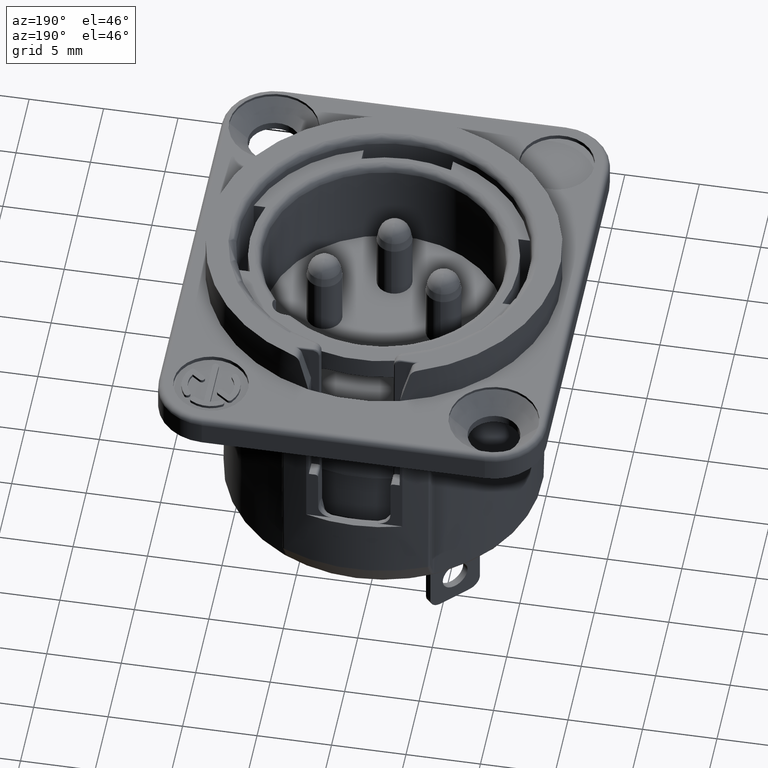
[diagram: clean part render]
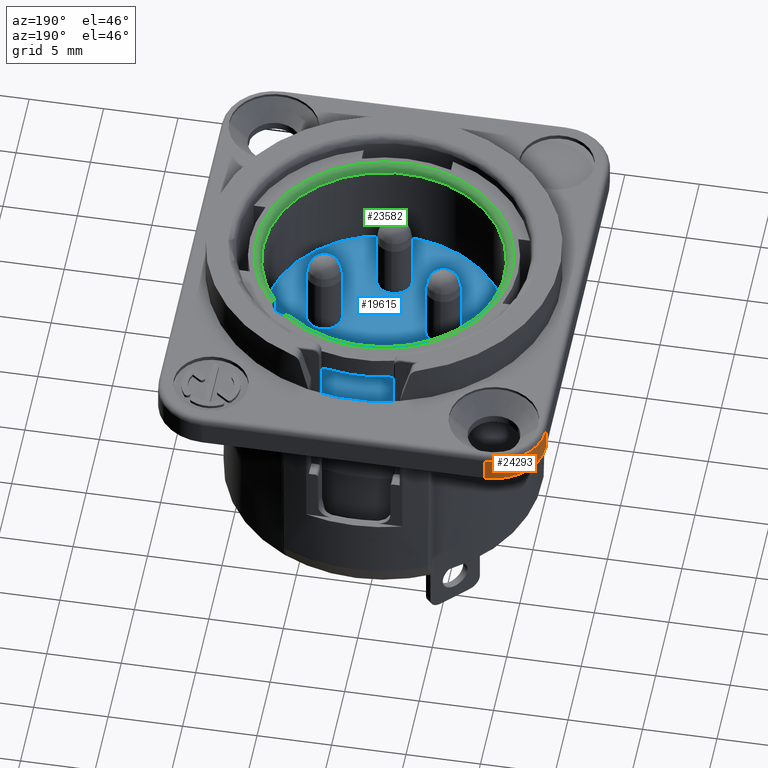
[diagram: same view with three faces highlighted in distinct colors, each labeled with its STEP entity id]
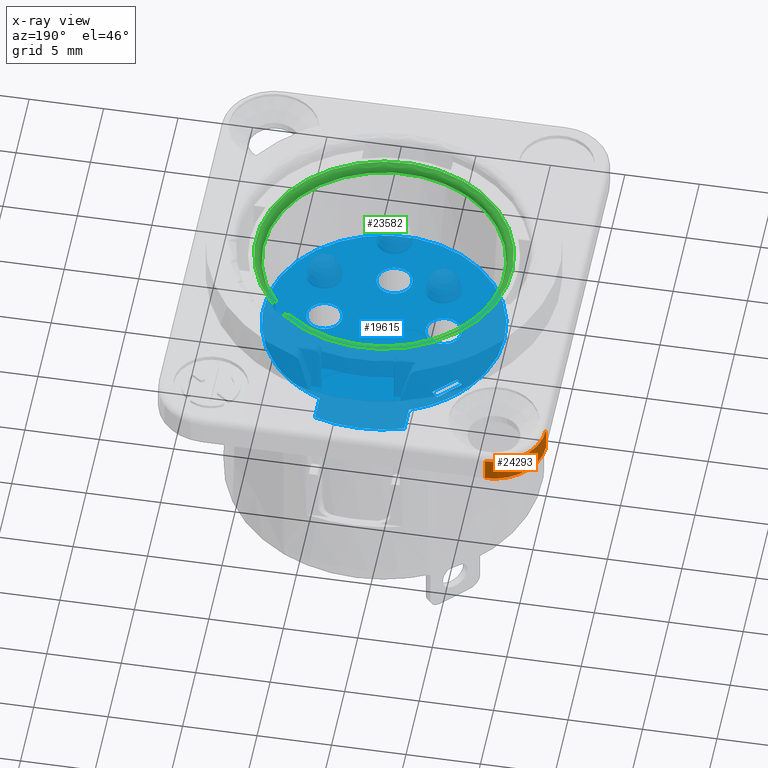
[diagram: x-ray of the same camera — body ghosted, the three highlighted faces saturated]
A machine part, auxiliary view with three faces highlighted in distinct colors.
The next image is the same camera in x-ray (body ghosted, the three faces saturated) — at least one of them is partly hidden behind the body in this view.
Their STEP definitions:

[orange] entity #24293 — the highlighted cylindrical surface (partial cylindrical patch) has radius 3.5 mm, axis along (0, 0, 1).
#28=CARTESIAN_POINT('',(-9.5E0,1.2E1,0.E0));
#29=DIRECTION('',(0.E0,0.E0,1.E0));
#30=DIRECTION('',(0.E0,1.E0,0.E0));
#31=AXIS2_PLACEMENT_3D('',#28,#29,#30);
#8317=DIRECTION('',(0.E0,-8.017586594633E-11,1.E0));
#8318=VECTOR('',#8317,1.6E0);
#8319=CARTESIAN_POINT('',(-1.3E1,1.2E1,0.E0));
#8320=LINE('',#8319,#8318);
#8321=DIRECTION('',(9.321876603963E-11,0.E0,1.E0));
#8322=VECTOR('',#8321,1.6E0);
#8323=CARTESIAN_POINT('',(-9.5E0,1.55E1,0.E0));
#8324=LINE('',#8323,#8322);
#8330=CARTESIAN_POINT('',(-9.5E0,1.2E1,1.6E0));
#8331=DIRECTION('',(0.E0,0.E0,1.E0));
#8332=DIRECTION('',(0.E0,1.E0,0.E0));
#8333=AXIS2_PLACEMENT_3D('',#8330,#8331,#8332);
#10809=CARTESIAN_POINT('',(-9.5E0,1.55E1,0.E0));
#10810=VERTEX_POINT('',#10809);
#10811=CARTESIAN_POINT('',(-1.3E1,1.2E1,0.E0));
#10812=VERTEX_POINT('',#10811);
#12195=CARTESIAN_POINT('',(-1.3E1,1.199999999987E1,1.6E0));
#12197=VERTEX_POINT('',#12195);
#12221=CARTESIAN_POINT('',(-9.499999999851E0,1.55E1,1.6E0));
#12222=VERTEX_POINT('',#12221);
#24280=CARTESIAN_POINT('',(-9.5E0,1.2E1,0.E0));
#24281=DIRECTION('',(0.E0,0.E0,1.E0));
#24282=DIRECTION('',(1.E0,0.E0,0.E0));
#24283=AXIS2_PLACEMENT_3D('',#24280,#24281,#24282);
#24284=CYLINDRICAL_SURFACE('',#24283,3.5E0);
#24286=ORIENTED_EDGE('',*,*,#24285,.T.);
#24287=ORIENTED_EDGE('',*,*,#24275,.F.);
#24288=ORIENTED_EDGE('',*,*,#13613,.F.);
#24290=ORIENTED_EDGE('',*,*,#24289,.T.);
#24291=EDGE_LOOP('',(#24286,#24287,#24288,#24290));
#24292=FACE_OUTER_BOUND('',#24291,.F.);
#24293=ADVANCED_FACE('',(#24292),#24284,.T.);
#32=CIRCLE('',#31,3.5E0);
#8334=CIRCLE('',#8333,3.5E0);
#13613=EDGE_CURVE('',#10810,#10812,#32,.T.);
#24275=EDGE_CURVE('',#10812,#12197,#8320,.T.);
#24285=EDGE_CURVE('',#12222,#12197,#8334,.T.);
#24289=EDGE_CURVE('',#10810,#12222,#8324,.T.);

[blue] entity #19615 — the highlighted planar face has unit normal (0, 0, -1).
#4746=CARTESIAN_POINT('',(0.E0,0.E0,-2.8E0));
#4747=DIRECTION('',(0.E0,0.E0,1.E0));
#4748=DIRECTION('',(-3.703703703704E-1,9.288841632581E-1,0.E0));
#4749=AXIS2_PLACEMENT_3D('',#4746,#4747,#4748);
#4751=CARTESIAN_POINT('',(0.E0,0.E0,-2.8E0));
#4752=DIRECTION('',(0.E0,0.E0,1.E0));
#4753=DIRECTION('',(-8.040605449350E-1,5.945474245834E-1,0.E0));
#4754=AXIS2_PLACEMENT_3D('',#4751,#4752,#4753);
#4764=CARTESIAN_POINT('',(0.E0,0.E0,-2.8E0));
#4765=DIRECTION('',(0.E0,0.E0,1.E0));
#4766=DIRECTION('',(6.173048607650E-1,7.867240360354E-1,0.E0));
#4767=AXIS2_PLACEMENT_3D('',#4764,#4765,#4766);
#4773=DIRECTION('',(0.E0,1.E0,0.E0));
#4774=VECTOR('',#4773,1.753025935249E0);
#4775=CARTESIAN_POINT('',(3.E0,7.523961722391E0,-2.8E0));
#4776=LINE('',#4775,#4774);
#4781=CARTESIAN_POINT('',(0.E0,0.E0,-2.8E0));
#4782=DIRECTION('',(0.E0,0.E0,1.E0));
#4783=DIRECTION('',(7.867240360354E-1,6.173048607650E-1,0.E0));
#4784=AXIS2_PLACEMENT_3D('',#4781,#4782,#4783);
#4786=CARTESIAN_POINT('',(0.E0,0.E0,-2.8E0));
#4787=DIRECTION('',(0.E0,0.E0,1.E0));
#4788=DIRECTION('',(-5.674313676188E-1,8.234206962678E-1,0.E0));
#4789=AXIS2_PLACEMENT_3D('',#4786,#4787,#4788);
#4791=DIRECTION('',(0.E0,1.E0,0.E0));
#4792=VECTOR('',#4791,1.753025935249E0);
#4793=CARTESIAN_POINT('',(-3.E0,7.523961722391E0,-2.8E0));
#4794=LINE('',#4793,#4792);
#4803=DIRECTION('',(7.071067811865E-1,7.071067811865E-1,0.E0));
#4804=VECTOR('',#4803,2.E0);
#4805=CARTESIAN_POINT('',(-6.050935516920E0,4.636721954547E0,-2.8E0));
#4806=LINE('',#4805,#4804);
#4807=DIRECTION('',(-7.071067811865E-1,7.071067811865E-1,0.E0));
#4808=VECTOR('',#4807,5.366360339043E-1);
#4809=CARTESIAN_POINT('',(-4.257262975944E0,5.671476538317E0,-2.8E0));
#4810=LINE('',#4809,#4808);
#4815=DIRECTION('',(7.071067811866E-1,-7.071067811865E-1,0.E0));
#4816=VECTOR('',#4815,2.859163945415E-2);
#4817=CARTESIAN_POINT('',(-4.257262975944E0,5.671476538317E0,-2.8E0));
#4818=LINE('',#4817,#4816);
#4824=DIRECTION('',(7.071067811865E-1,7.071067811865E-1,0.E0));
#4825=VECTOR('',#4824,2.E0);
#4826=CARTESIAN_POINT('',(-5.651259196174E0,4.237045633801E0,-2.8E0));
#4827=LINE('',#4826,#4825);
#4828=DIRECTION('',(7.071067811865E-1,-7.071067811866E-1,0.E0));
#4829=VECTOR('',#4828,2.859163945416E-2);
#4830=CARTESIAN_POINT('',(-5.671476538317E0,4.257262975944E0,-2.8E0));
#4831=LINE('',#4830,#4829);
#4845=DIRECTION('',(-7.071067811865E-1,7.071067811865E-1,0.E0));
#4846=VECTOR('',#4845,5.366360339043E-1);
#4847=CARTESIAN_POINT('',(-5.671476538317E0,4.257262975944E0,-2.8E0));
#4848=LINE('',#4847,#4846);
#4941=CARTESIAN_POINT('',(0.E0,-4.E0,-2.8E0));
#4942=DIRECTION('',(0.E0,0.E0,1.E0));
#4943=DIRECTION('',(0.E0,-1.E0,0.E0));
#4944=AXIS2_PLACEMENT_3D('',#4941,#4942,#4943);
#4950=CARTESIAN_POINT('',(0.E0,-4.E0,-2.8E0));
#4951=DIRECTION('',(0.E0,0.E0,1.E0));
#4952=DIRECTION('',(0.E0,1.E0,0.E0));
#4953=AXIS2_PLACEMENT_3D('',#4950,#4951,#4952);
#4997=CARTESIAN_POINT('',(-4.E0,0.E0,-2.8E0));
#4998=DIRECTION('',(0.E0,0.E0,1.E0));
#4999=DIRECTION('',(0.E0,-1.E0,0.E0));
#5000=AXIS2_PLACEMENT_3D('',#4997,#4998,#4999);
#5006=CARTESIAN_POINT('',(-4.E0,0.E0,-2.8E0));
#5007=DIRECTION('',(0.E0,0.E0,1.E0));
#5008=DIRECTION('',(0.E0,1.E0,0.E0));
#5009=AXIS2_PLACEMENT_3D('',#5006,#5007,#5008);
#5053=CARTESIAN_POINT('',(4.E0,0.E0,-2.8E0));
#5054=DIRECTION('',(0.E0,0.E0,1.E0));
#5055=DIRECTION('',(0.E0,-1.E0,0.E0));
#5056=AXIS2_PLACEMENT_3D('',#5053,#5054,#5055);
#5062=CARTESIAN_POINT('',(4.E0,0.E0,-2.8E0));
#5063=DIRECTION('',(0.E0,0.E0,1.E0));
#5064=DIRECTION('',(0.E0,1.E0,0.E0));
#5065=AXIS2_PLACEMENT_3D('',#5062,#5063,#5064);
#5138=CARTESIAN_POINT('',(0.E0,0.E0,-2.8E0));
#5139=DIRECTION('',(0.E0,0.E0,1.E0));
#5140=DIRECTION('',(3.076923076923E-1,9.514859136041E-1,0.E0));
#5141=AXIS2_PLACEMENT_3D('',#5138,#5139,#5140);
#12638=CARTESIAN_POINT('',(3.E0,9.276987657640E0,-2.8E0));
#12640=VERTEX_POINT('',#12638);
#12647=CARTESIAN_POINT('',(-3.E0,9.276987657640E0,-2.8E0));
#12648=VERTEX_POINT('',#12647);
#13465=CARTESIAN_POINT('',(-4.596194077713E0,6.669707639770E0,-2.8E0));
#13467=VERTEX_POINT('',#13465);
#13468=CARTESIAN_POINT('',(5.000169372197E0,6.372464691887E0,-2.8E0));
#13469=VERTEX_POINT('',#13468);
#13470=CARTESIAN_POINT('',(6.372464691887E0,5.000169372197E0,-2.8E0));
#13471=VERTEX_POINT('',#13470);
#13482=CARTESIAN_POINT('',(3.E0,7.523961722391E0,-2.8E0));
#13483=VERTEX_POINT('',#13482);
#13484=CARTESIAN_POINT('',(-3.E0,7.523961722391E0,-2.8E0));
#13485=VERTEX_POINT('',#13484);
#13486=CARTESIAN_POINT('',(-6.512890413974E0,4.815834139126E0,-2.8E0));
#13487=VERTEX_POINT('',#13486);
#13488=CARTESIAN_POINT('',(4.E0,-1.19E0,-2.8E0));
#13489=VERTEX_POINT('',#13488);
#13490=CARTESIAN_POINT('',(4.E0,1.19E0,-2.8E0));
#13491=VERTEX_POINT('',#13490);
#13492=CARTESIAN_POINT('',(-4.E0,-1.19E0,-2.8E0));
#13493=VERTEX_POINT('',#13492);
#13494=CARTESIAN_POINT('',(-4.E0,1.19E0,-2.8E0));
#13495=VERTEX_POINT('',#13494);
#13496=CARTESIAN_POINT('',(0.E0,-5.19E0,-2.8E0));
#13497=VERTEX_POINT('',#13496);
#13498=CARTESIAN_POINT('',(0.E0,-2.81E0,-2.8E0));
#13499=VERTEX_POINT('',#13498);
#13500=CARTESIAN_POINT('',(-4.636721954547E0,6.050935516920E0,-2.8E0));
#13501=VERTEX_POINT('',#13500);
#13502=CARTESIAN_POINT('',(-6.050935516920E0,4.636721954547E0,-2.8E0));
#13503=VERTEX_POINT('',#13502);
#13512=CARTESIAN_POINT('',(-5.651259196174E0,4.237045633801E0,-2.8E0));
#13513=CARTESIAN_POINT('',(-4.237045633801E0,5.651259196174E0,-2.8E0));
#13514=VERTEX_POINT('',#13512);
#13515=VERTEX_POINT('',#13513);
#13516=CARTESIAN_POINT('',(-4.257262975944E0,5.671476538317E0,-2.8E0));
#13517=VERTEX_POINT('',#13516);
#13518=CARTESIAN_POINT('',(-5.671476538317E0,4.257262975944E0,-2.8E0));
#13519=VERTEX_POINT('',#13518);
#19566=CARTESIAN_POINT('',(-3.E0,0.E0,-2.8E0));
#19567=DIRECTION('',(0.E0,0.E0,-1.E0));
#19568=DIRECTION('',(1.E0,0.E0,0.E0));
#19569=AXIS2_PLACEMENT_3D('',#19566,#19567,#19568);
#19570=PLANE('',#19569);
#19571=ORIENTED_EDGE('',*,*,#19557,.F.);
#19572=ORIENTED_EDGE('',*,*,#19546,.F.);
#19573=ORIENTED_EDGE('',*,*,#19359,.F.);
#19574=ORIENTED_EDGE('',*,*,#19540,.F.);
#19575=ORIENTED_EDGE('',*,*,#19405,.F.);
#19576=ORIENTED_EDGE('',*,*,#19532,.F.);
#19578=ORIENTED_EDGE('',*,*,#19577,.T.);
#19580=ORIENTED_EDGE('',*,*,#19579,.F.);
#19581=EDGE_LOOP('',(#19571,#19572,#19573,#19574,#19575,#19576,#19578,#19580));
#19582=FACE_OUTER_BOUND('',#19581,.F.);
#19584=ORIENTED_EDGE('',*,*,#19583,.T.);
#19586=ORIENTED_EDGE('',*,*,#19585,.T.);
#19587=EDGE_LOOP('',(#19584,#19586));
#19588=FACE_BOUND('',#19587,.F.);
#19590=ORIENTED_EDGE('',*,*,#19589,.T.);
#19592=ORIENTED_EDGE('',*,*,#19591,.T.);
#19593=EDGE_LOOP('',(#19590,#19592));
#19594=FACE_BOUND('',#19593,.F.);
#19596=ORIENTED_EDGE('',*,*,#19595,.T.);
#19598=ORIENTED_EDGE('',*,*,#19597,.T.);
#19599=EDGE_LOOP('',(#19596,#19598));
#19600=FACE_BOUND('',#19599,.F.);
#19602=ORIENTED_EDGE('',*,*,#19601,.F.);
#19604=ORIENTED_EDGE('',*,*,#19603,.F.);
#19606=ORIENTED_EDGE('',*,*,#19605,.T.);
#19608=ORIENTED_EDGE('',*,*,#19607,.T.);
#19610=ORIENTED_EDGE('',*,*,#19609,.F.);
#19612=ORIENTED_EDGE('',*,*,#19611,.T.);
#19613=EDGE_LOOP('',(#19602,#19604,#19606,#19608,#19610,#19612));
#19614=FACE_BOUND('',#19613,.F.);
#19615=ADVANCED_FACE('',(#19582,#19588,#19594,#19600,#19614),#19570,.F.);
#4750=CIRCLE('',#4749,8.1E0);
#4755=CIRCLE('',#4754,8.1E0);
#4768=CIRCLE('',#4767,8.1E0);
#4785=CIRCLE('',#4784,8.1E0);
#4790=CIRCLE('',#4789,8.1E0);
#4945=CIRCLE('',#4944,1.19E0);
#4954=CIRCLE('',#4953,1.19E0);
#5001=CIRCLE('',#5000,1.19E0);
#5010=CIRCLE('',#5009,1.19E0);
#5057=CIRCLE('',#5056,1.19E0);
#5066=CIRCLE('',#5065,1.19E0);
#5142=CIRCLE('',#5141,9.75E0);
#19359=EDGE_CURVE('',#13471,#13469,#4785,.T.);
#19405=EDGE_CURVE('',#13467,#13487,#4790,.T.);
#19532=EDGE_CURVE('',#13485,#13467,#4750,.T.);
#19540=EDGE_CURVE('',#13487,#13471,#4755,.T.);
#19546=EDGE_CURVE('',#13469,#13483,#4768,.T.);
#19557=EDGE_CURVE('',#13483,#12640,#4776,.T.);
#19577=EDGE_CURVE('',#13485,#12648,#4794,.T.);
#19579=EDGE_CURVE('',#12640,#12648,#5142,.T.);
#19583=EDGE_CURVE('',#13497,#13499,#4945,.T.);
#19585=EDGE_CURVE('',#13499,#13497,#4954,.T.);
#19589=EDGE_CURVE('',#13493,#13495,#5001,.T.);
#19591=EDGE_CURVE('',#13495,#13493,#5010,.T.);
#19595=EDGE_CURVE('',#13489,#13491,#5057,.T.);
#19597=EDGE_CURVE('',#13491,#13489,#5066,.T.);
#19601=EDGE_CURVE('',#13503,#13501,#4806,.T.);
#19603=EDGE_CURVE('',#13519,#13503,#4848,.T.);
#19605=EDGE_CURVE('',#13519,#13514,#4831,.T.);
#19607=EDGE_CURVE('',#13514,#13515,#4827,.T.);
#19609=EDGE_CURVE('',#13517,#13515,#4818,.T.);
#19611=EDGE_CURVE('',#13517,#13501,#4810,.T.);

[green] entity #23582 — the highlighted toroidal blend (fillet) surface has major radius 8.6 mm and minor (blend) radius 0.5 mm.
#4700=CARTESIAN_POINT('',(5.000169372197E0,6.372464691887E0,3.2E0));
#4701=CARTESIAN_POINT('',(5.000169372197E0,6.372464691887E0,3.247914412301E0));
#4702=CARTESIAN_POINT('',(5.012118706072E0,6.379820345345E0,3.338950561835E0));
#4703=CARTESIAN_POINT('',(5.065311905087E0,6.409533222582E0,3.466104304414E0));
#4704=CARTESIAN_POINT('',(5.151921032991E0,6.449163391966E0,3.568969066941E0));
#4705=CARTESIAN_POINT('',(5.271234444942E0,6.488599405556E0,3.644832626605E0));
#4706=CARTESIAN_POINT('',(5.427397657273E0,6.516543728724E0,3.690953094586E0));
#4707=CARTESIAN_POINT('',(5.552617851927E0,6.517008831046E0,3.7E0));
#4708=CARTESIAN_POINT('',(5.619609200095E0,6.509991738720E0,3.7E0));
#7840=CARTESIAN_POINT('',(0.E0,0.E0,3.2E0));
#7841=DIRECTION('',(0.E0,0.E0,1.E0));
#7842=DIRECTION('',(6.173048607650E-1,7.867240360354E-1,0.E0));
#7843=AXIS2_PLACEMENT_3D('',#7840,#7841,#7842);
#7845=CARTESIAN_POINT('',(6.509991738720E0,5.619609200095E0,3.7E0));
#7846=CARTESIAN_POINT('',(6.513439104037E0,5.586697612293E0,3.7E0));
#7847=CARTESIAN_POINT('',(6.517101508360E0,5.520529902645E0,3.697907483812E0));
#7848=CARTESIAN_POINT('',(6.512513092373E0,5.419747566487E0,3.685327824795E0));
#7849=CARTESIAN_POINT('',(6.498280624745E0,5.322799659900E0,3.660595845251E0));
#7850=CARTESIAN_POINT('',(6.475724089885E0,5.231660580248E0,3.620605122180E0));
#7851=CARTESIAN_POINT('',(6.448146909551E0,5.151972476284E0,3.564559764913E0));
#7852=CARTESIAN_POINT('',(6.419228469244E0,5.085879450592E0,3.491496697623E0));
#7853=CARTESIAN_POINT('',(6.393994055561E0,5.037115051592E0,3.404161441501E0));
#7854=CARTESIAN_POINT('',(6.376638958079E0,5.007019619012E0,3.305166451015E0));
#7855=CARTESIAN_POINT('',(6.372464691887E0,5.000169372197E0,3.235856141293E0));
#7856=CARTESIAN_POINT('',(6.372464691887E0,5.000169372197E0,3.2E0));
#7858=CARTESIAN_POINT('',(0.E0,0.E0,3.7E0));
#7859=DIRECTION('',(0.E0,0.E0,-1.E0));
#7860=DIRECTION('',(7.569757835721E-1,6.534429302436E-1,0.E0));
#7861=AXIS2_PLACEMENT_3D('',#7858,#7859,#7860);
#12805=VERTEX_POINT('',#7845);
#12806=VERTEX_POINT('',#7856);
#12807=CARTESIAN_POINT('',(5.619609200095E0,6.509991738720E0,3.7E0));
#12808=VERTEX_POINT('',#12807);
#12809=CARTESIAN_POINT('',(5.000169372197E0,6.372464691887E0,3.2E0));
#12810=VERTEX_POINT('',#12809);
#23571=CARTESIAN_POINT('',(0.E0,0.E0,3.2E0));
#23572=DIRECTION('',(0.E0,0.E0,1.E0));
#23573=DIRECTION('',(0.E0,1.E0,0.E0));
#23574=AXIS2_PLACEMENT_3D('',#23571,#23572,#23573);
#23575=TOROIDAL_SURFACE('',#23574,8.6E0,5.E-1);
#23576=ORIENTED_EDGE('',*,*,#19543,.T.);
#23577=ORIENTED_EDGE('',*,*,#19508,.F.);
#23578=ORIENTED_EDGE('',*,*,#20235,.T.);
#23579=ORIENTED_EDGE('',*,*,#19504,.F.);
#23580=EDGE_LOOP('',(#23576,#23577,#23578,#23579));
#23581=FACE_OUTER_BOUND('',#23580,.F.);
#23582=ADVANCED_FACE('',(#23581),#23575,.T.);
#4709=B_SPLINE_CURVE_WITH_KNOTS('',3,(#4700,#4701,#4702,#4703,#4704,#4705,#4706,
#4707,#4708),.UNSPECIFIED.,.F.,.F.,(4,1,1,1,1,1,4),(0.E0,1.666666666667E-1,
3.333333333333E-1,5.E-1,6.666666666667E-1,8.333333333333E-1,1.E0),
.UNSPECIFIED.);
#7844=CIRCLE('',#7843,8.1E0);
#7857=B_SPLINE_CURVE_WITH_KNOTS('',3,(#7845,#7846,#7847,#7848,#7849,#7850,#7851,
#7852,#7853,#7854,#7855,#7856),.UNSPECIFIED.,.F.,.F.,(4,1,1,1,1,1,1,1,1,4),
(0.E0,1.111111111111E-1,2.222222222222E-1,3.333333333333E-1,4.444444444444E-1,
5.555555555556E-1,6.666666666667E-1,7.777777777778E-1,8.888888888889E-1,1.E0),
.UNSPECIFIED.);
#7862=CIRCLE('',#7861,8.6E0);
#19504=EDGE_CURVE('',#12810,#12808,#4709,.T.);
#19508=EDGE_CURVE('',#12805,#12806,#7857,.T.);
#19543=EDGE_CURVE('',#12810,#12806,#7844,.T.);
#20235=EDGE_CURVE('',#12805,#12808,#7862,.T.);